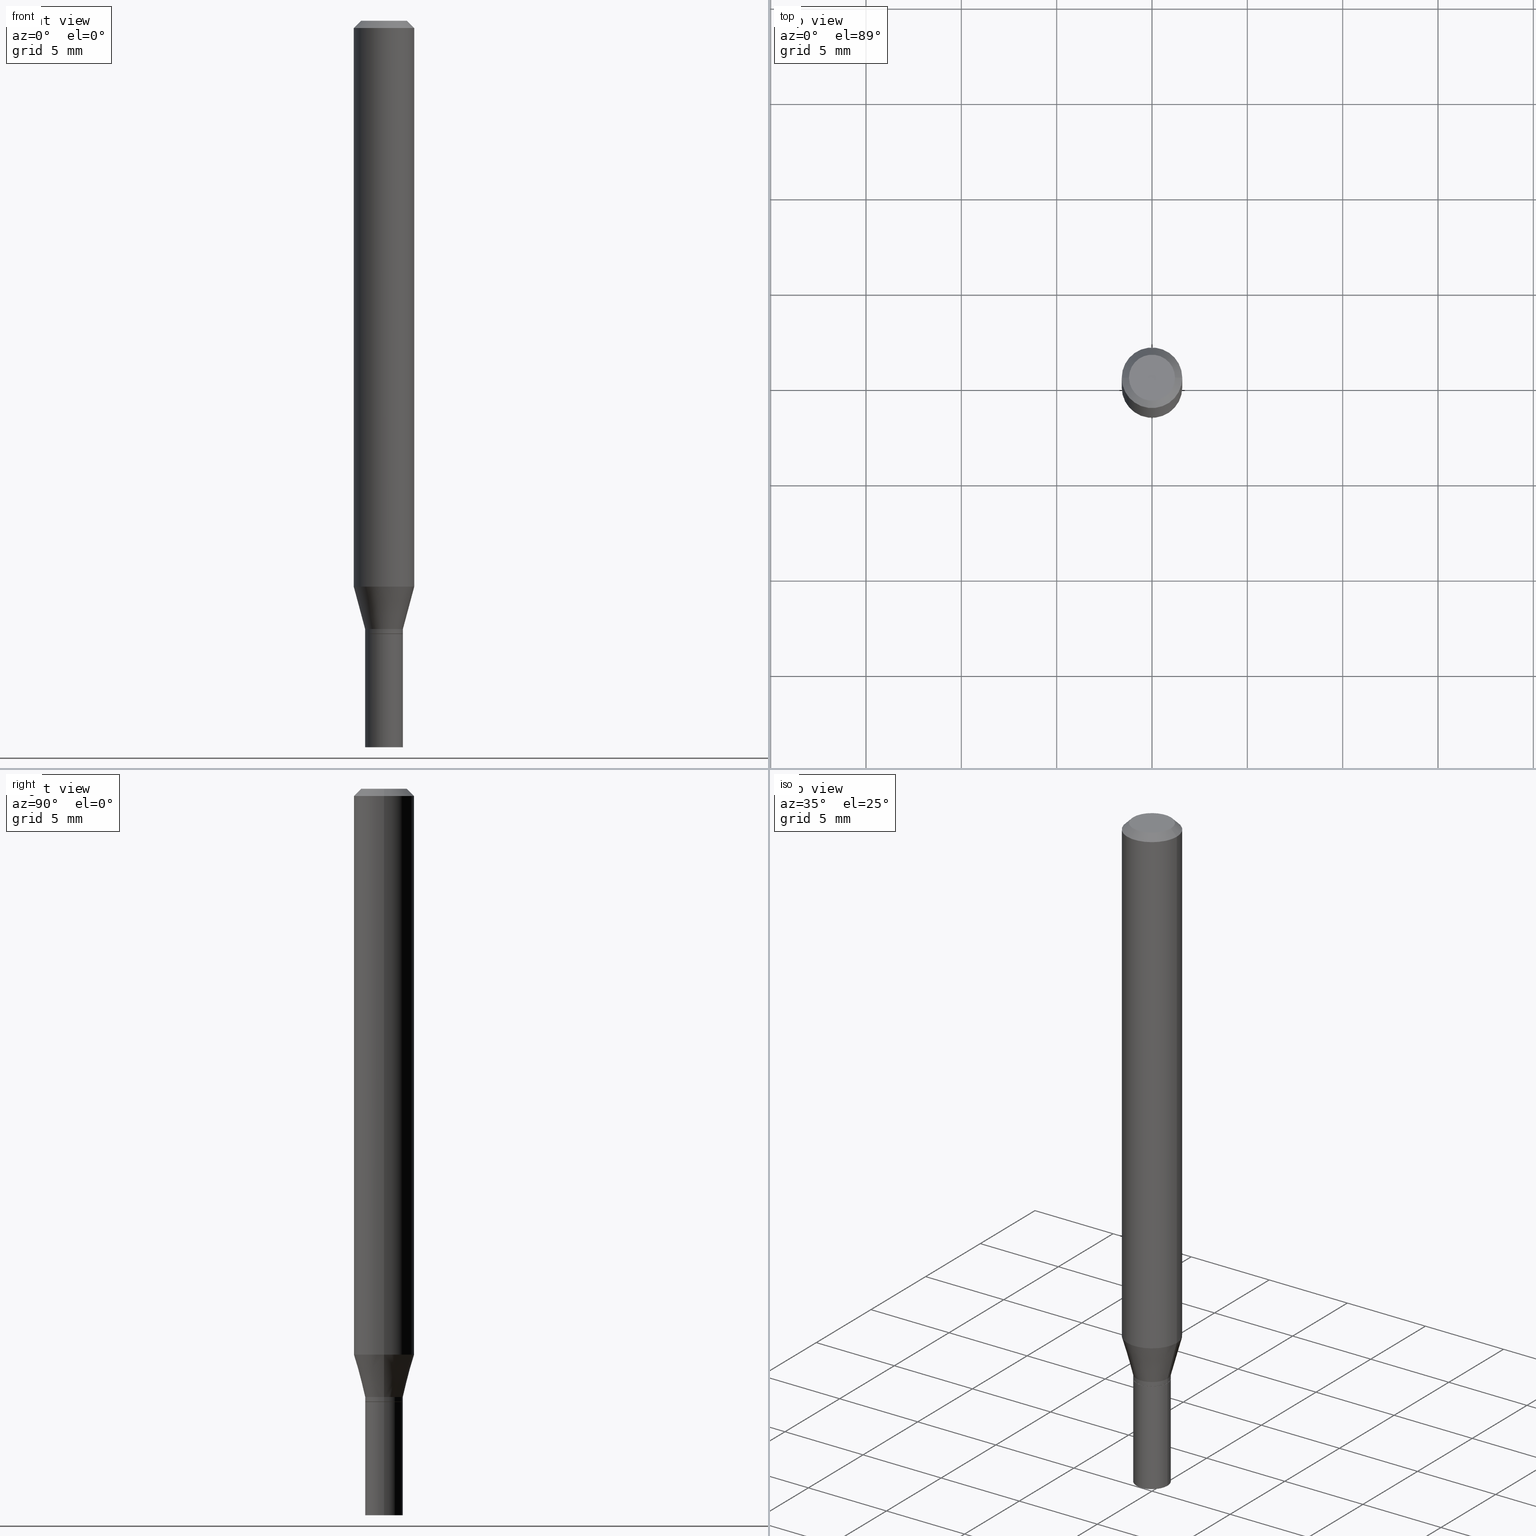
[diagram: canonical four-view strip — front | top / right | iso, engineering-drawing reading convention]
A machine part, canonical four-view strip (front | top / right | iso — engineering-drawing reading convention). The complete STEP part file that produces these views, byte-faithful:
ISO-10303-21;
HEADER;
FILE_DESCRIPTION (( 'STEP AP203' ),
    '1' );
FILE_NAME ('00870.STEP',
    '2024-03-19T22:45:08',
    ( '' ),
    ( '' ),
    'SwSTEP 2.0',
    'SolidWorks 2023',
    '' );
FILE_SCHEMA (( 'CONFIG_CONTROL_DESIGN' ));
ENDSEC;

DATA;
#1 = VERTEX_POINT ( 'NONE', #130 ) ;
#2 = DIRECTION ( 'NONE',  ( -2.445468806185136597E-29, 3.491481338843145583E-15, 1.000000000000000000 ) ) ;
#3 = PERSON ( 'UNSPECIFIED', 'UNSPECIFIED', 'UNSPECIFIED', ('UNSPECIFIED'), ('UNSPECIFIED'), ('UNSPECIFIED') ) ;
#4 = PERSON_AND_ORGANIZATION ( #3, #311 ) ;
#5 = AXIS2_PLACEMENT_3D ( 'NONE', #160, #385, #168 ) ;
#6 = CIRCLE ( 'NONE', #30, 0.04749999999999999362 ) ;
#7 = ORIENTED_EDGE ( 'NONE', *, *, #280, .F. ) ;
#8 = ORIENTED_EDGE ( 'NONE', *, *, #350, .T. ) ;
#9 = CARTESIAN_POINT ( 'NONE',  ( 0.06250000000000000000, -4.364351673553916694E-16, 3.047610484872459871E-30 ) ) ;
#10 = AXIS2_PLACEMENT_3D ( 'NONE', #83, #346, #273 ) ;
#11 = CC_DESIGN_SECURITY_CLASSIFICATION ( #338, ( #207 ) ) ;
#12 = DIRECTION ( 'NONE',  ( -2.445468806185136597E-29, 3.491481338843145583E-15, 1.000000000000000000 ) ) ;
#13 = DIRECTION ( 'NONE',  ( -2.445468806185136877E-29, 3.491481338843145188E-15, 1.000000000000000000 ) ) ;
#14 = ORIENTED_EDGE ( 'NONE', *, *, #359, .T. ) ;
#15 = FACE_OUTER_BOUND ( 'NONE', #171, .T. ) ;
#16 = DIRECTION ( 'NONE',  ( -2.445468806185136597E-29, 3.491481338843145583E-15, 1.000000000000000000 ) ) ;
#17 = CIRCLE ( 'NONE', #397, 0.06250000000000000000 ) ;
#18 = DIRECTION ( 'NONE',  ( -2.445468806185136597E-29, 3.491481338843145583E-15, 1.000000000000000000 ) ) ;
#19 = DIRECTION ( 'NONE',  ( 1.000000000000000000, -6.982962677686265922E-15, 4.876176775795935793E-29 ) ) ;
#20 = LINE ( 'NONE', #143, #42 ) ;
#21 =( NAMED_UNIT ( * ) PLANE_ANGLE_UNIT ( ) SI_UNIT ( $, .RADIAN. ) );
#22 = LINE ( 'NONE', #320, #113 ) ;
#23 = DIRECTION ( 'NONE',  ( -2.445468806185136597E-29, 3.491481338843145583E-15, 1.000000000000000000 ) ) ;
#24 = AXIS2_PLACEMENT_3D ( 'NONE', #425, #279, #423 ) ;
#25 = CC_DESIGN_APPROVAL ( #372, ( #415 ) ) ;
#26 = PLANE ( 'NONE',  #177 ) ;
#27 = DIRECTION ( 'NONE',  ( 0.2588190451025206840, 1.565188264969626504E-15, 0.9659258262890682012 ) ) ;
#28 = PERSON_AND_ORGANIZATION ( #3, #311 ) ;
#29 = ADVANCED_FACE ( 'NONE', ( #282 ), #394, .T. ) ;
#30 = AXIS2_PLACEMENT_3D ( 'NONE', #111, #37, #384 ) ;
#31 = COORDINATED_UNIVERSAL_TIME_OFFSET ( 5, 0, .BEHIND. ) ;
#32 = DATE_AND_TIME ( #183, #438 ) ;
#33 = ADVANCED_FACE ( 'NONE', ( #288 ), #417, .T. ) ;
#34 = ORIENTED_EDGE ( 'NONE', *, *, #199, .T. ) ;
#35 = CARTESIAN_POINT ( 'NONE',  ( 3.071508820568532122E-29, -4.385300561586992092E-15, -1.256000000000000227 ) ) ;
#36 = DATE_AND_TIME ( #307, #328 ) ;
#37 = DIRECTION ( 'NONE',  ( -2.445468806185136597E-29, 3.491481338843145583E-15, 1.000000000000000000 ) ) ;
#38 = VERTEX_POINT ( 'NONE', #200 ) ;
#39 = CARTESIAN_POINT ( 'NONE',  ( 3.095963508630383106E-29, -4.420215374975422163E-15, -1.266000000000000014 ) ) ;
#40 = EDGE_CURVE ( 'NONE', #38, #77, #20, .T. ) ;
#41 = FACE_OUTER_BOUND ( 'NONE', #366, .T. ) ;
#42 = VECTOR ( 'NONE', #13, 39.37007874015748143 ) ;
#43 = CIRCLE ( 'NONE', #291, 0.03849999999999999256 ) ;
#44 =( CONVERSION_BASED_UNIT ( 'INCH', #360 ) LENGTH_UNIT ( ) NAMED_UNIT ( #172 ) );
#45 = DIRECTION ( 'NONE',  ( -2.445468806185136597E-29, 3.491481338843145583E-15, 1.000000000000000000 ) ) ;
#46 = DATE_AND_TIME ( #304, #401 ) ;
#47 = ORIENTED_EDGE ( 'NONE', *, *, #280, .T. ) ;
#48 = ORIENTED_EDGE ( 'NONE', *, *, #213, .T. ) ;
#49 = CARTESIAN_POINT ( 'NONE',  ( 3.668203209277704895E-29, -5.237222008264718177E-15, -1.500000000000000222 ) ) ;
#50 = EDGE_CURVE ( 'NONE', #158, #293, #363, .T. ) ;
#51 = CARTESIAN_POINT ( 'NONE',  ( 0.000000000000000000, 0.000000000000000000, 0.000000000000000000 ) ) ;
#52 = CARTESIAN_POINT ( 'NONE',  ( 3.095963508630383106E-29, -4.420215374975422163E-15, -1.266000000000000014 ) ) ;
#53 = CONICAL_SURFACE ( 'NONE', #91, 0.03849999999999999256, 0.7853981633974739252 ) ;
#54 = DIRECTION ( 'NONE',  ( -2.445468806185136597E-29, 3.491481338843145583E-15, 1.000000000000000000 ) ) ;
#55 = FACE_OUTER_BOUND ( 'NONE', #402, .T. ) ;
#56 = LINE ( 'NONE', #87, #151 ) ;
#57 = EDGE_CURVE ( 'NONE', #162, #257, #56, .T. ) ;
#58 = FACE_OUTER_BOUND ( 'NONE', #93, .T. ) ;
#59 = CIRCLE ( 'NONE', #186, 0.03899999999999999994 ) ;
#60 = DIRECTION ( 'NONE',  ( -2.445468806185136597E-29, 3.491481338843145583E-15, 1.000000000000000000 ) ) ;
#61 = DIRECTION ( 'NONE',  ( -1.000000000000000000, 6.982962677686265922E-15, -4.876176775795935793E-29 ) ) ;
#62 = CARTESIAN_POINT ( 'NONE',  ( 3.668203209277705088E-31, -5.237222008264718399E-17, -0.01499999999999999944 ) ) ;
#63 = APPROVAL ( #435, 'UNSPECIFIED' ) ;
#64 = CARTESIAN_POINT ( 'NONE',  ( 0.03899999999999990280, -4.657636106016756115E-15, -1.256000000000000227 ) ) ;
#65 = ORIENTED_EDGE ( 'NONE', *, *, #50, .F. ) ;
#66 = AXIS2_PLACEMENT_3D ( 'NONE', #239, #289, #386 ) ;
#67 = CIRCLE ( 'NONE', #262, 0.03849999999999999256 ) ;
#68 = DIRECTION ( 'NONE',  ( 0.000000000000000000, 0.000000000000000000, 1.000000000000000000 ) ) ;
#69 = EDGE_LOOP ( 'NONE', ( #244, #433, #122, #148 ) ) ;
#70 = SECURITY_CLASSIFICATION_LEVEL ( 'unclassified' ) ;
#71 = EDGE_CURVE ( 'NONE', #293, #158, #120, .T. ) ;
#72 = CARTESIAN_POINT ( 'NONE',  ( -0.03849999999999999256, -4.146656421707783743E-15, -1.266000000000000014 ) ) ;
#73 = CIRCLE ( 'NONE', #400, 0.03899999999999999994 ) ;
#74 = ADVANCED_FACE ( 'NONE', ( #315 ), #204, .T. ) ;
#75 = ORIENTED_EDGE ( 'NONE', *, *, #253, .F. ) ;
#76 = CARTESIAN_POINT ( 'NONE',  ( -0.06250000000000000000, -1.621640148419421755E-15, -0.01499999999999999944 ) ) ;
#77 = VERTEX_POINT ( 'NONE', #241 ) ;
#78 = FACE_OUTER_BOUND ( 'NONE', #461, .T. ) ;
#79 = CIRCLE ( 'NONE', #326, 0.03899999999999992362 ) ;
#80 = CIRCLE ( 'NONE', #256, 0.03899999999999990280 ) ;
#81 = ORIENTED_EDGE ( 'NONE', *, *, #447, .T. ) ;
#82 = EDGE_CURVE ( 'NONE', #169, #1, #128, .T. ) ;
#83 = CARTESIAN_POINT ( 'NONE',  ( 0.000000000000000000, 0.000000000000000000, 0.000000000000000000 ) ) ;
#84 = COORDINATED_UNIVERSAL_TIME_OFFSET ( 5, 0, .BEHIND. ) ;
#85 = ORIENTED_EDGE ( 'NONE', *, *, #459, .F. ) ;
#86 = CARTESIAN_POINT ( 'NONE',  ( 3.668203209277705088E-31, -5.237222008264718399E-17, -0.01499999999999999944 ) ) ;
#87 = CARTESIAN_POINT ( 'NONE',  ( -0.03899999999999990974, 2.771116669464384311E-16, -1.918384685199408874E-30 ) ) ;
#88 = DATE_AND_TIME ( #383, #410 ) ;
#89 = CARTESIAN_POINT ( 'NONE',  ( 3.094740774227290865E-29, -4.418469634306001449E-15, -1.265500000000000291 ) ) ;
#90 = AXIS2_PLACEMENT_3D ( 'NONE', #238, #453, #276 ) ;
#91 = AXIS2_PLACEMENT_3D ( 'NONE', #194, #197, #123 ) ;
#92 = DESIGN_CONTEXT ( 'detailed design', #264, 'design' ) ;
#93 = EDGE_LOOP ( 'NONE', ( #193, #81 ) ) ;
#94 = DIRECTION ( 'NONE',  ( -2.445468806185136597E-29, 3.491481338843145583E-15, 1.000000000000000000 ) ) ;
#95 = LINE ( 'NONE', #64, #250 ) ;
#96 = ORIENTED_EDGE ( 'NONE', *, *, #140, .F. ) ;
#97 = ORIENTED_EDGE ( 'NONE', *, *, #82, .F. ) ;
#98 = EDGE_CURVE ( 'NONE', #162, #169, #79, .T. ) ;
#99 = CC_DESIGN_PERSON_AND_ORGANIZATION_ASSIGNMENT ( #214, #365, ( #338 ) ) ;
#100 = AXIS2_PLACEMENT_3D ( 'NONE', #229, #452, #236 ) ;
#101 = APPLICATION_PROTOCOL_DEFINITION ( 'international standard', 'config_control_design', 1994, #264 ) ;
#102 = DIRECTION ( 'NONE',  ( -2.445468806185136877E-29, 3.491481338843145188E-15, 1.000000000000000000 ) ) ;
#103 = ORIENTED_EDGE ( 'NONE', *, *, #129, .T. ) ;
#104 = DIRECTION ( 'NONE',  ( 1.000000000000000000, -6.982962677686258033E-15, 0.000000000000000000 ) ) ;
#105 = APPROVAL_ROLE ( '' ) ;
#106 = CIRCLE ( 'NONE', #290, 0.03899999999999999994 ) ;
#107 = CARTESIAN_POINT ( 'NONE',  ( -0.03899999999999990280, -4.108188894640553562E-15, -1.256000000000000227 ) ) ;
#108 = ORIENTED_EDGE ( 'NONE', *, *, #439, .F. ) ;
#109 = LINE ( 'NONE', #72, #465 ) ;
#110 = VERTEX_POINT ( 'NONE', #416 ) ;
#111 = CARTESIAN_POINT ( 'NONE',  ( -1.280979716297259006E-44, 1.828899540070383801E-30, 5.238176471756152972E-16 ) ) ;
#112 = ADVANCED_FACE ( 'NONE', ( #202 ), #224, .T. ) ;
#113 = VECTOR ( 'NONE', #317, 39.37007874015748143 ) ;
#114 = AXIS2_PLACEMENT_3D ( 'NONE', #246, #277, #274 ) ;
#115 = VERTEX_POINT ( 'NONE', #198 ) ;
#116 = DIRECTION ( 'NONE',  ( -1.000000000000000000, 6.982962677686265922E-15, -4.876176775795935793E-29 ) ) ;
#117 = CARTESIAN_POINT ( 'NONE',  ( -0.04749999999999999362, 3.578768372314219874E-16, 5.238176471756128320E-16 ) ) ;
#118 = ORIENTED_EDGE ( 'NONE', *, *, #378, .T. ) ;
#119 = DIRECTION ( 'NONE',  ( -2.445468806185136597E-29, 3.491481338843145583E-15, 1.000000000000000000 ) ) ;
#120 = CIRCLE ( 'NONE', #387, 0.06250000000000000000 ) ;
#121 = AXIS2_PLACEMENT_3D ( 'NONE', #62, #176, #138 ) ;
#122 = ORIENTED_EDGE ( 'NONE', *, *, #359, .F. ) ;
#123 = DIRECTION ( 'NONE',  ( 1.000000000000000000, -6.982962677686271444E-15, 0.000000000000000000 ) ) ;
#124 = ORIENTED_EDGE ( 'NONE', *, *, #126, .F. ) ;
#125 = DIRECTION ( 'NONE',  ( 1.000000000000000000, -6.982962677686266711E-15, 4.876176775795935793E-29 ) ) ;
#126 = EDGE_CURVE ( 'NONE', #257, #1, #261, .T. ) ;
#127 = FACE_OUTER_BOUND ( 'NONE', #444, .T. ) ;
#128 = LINE ( 'NONE', #312, #464 ) ;
#129 = EDGE_CURVE ( 'NONE', #110, #283, #185, .T. ) ;
#130 = CARTESIAN_POINT ( 'NONE',  ( 0.03899999999999990280, -4.657636106016756115E-15, -1.256000000000000227 ) ) ;
#131 = EDGE_LOOP ( 'NONE', ( #341, #141, #65, #412 ) ) ;
#132 = CARTESIAN_POINT ( 'NONE',  ( 2.723355444297953310E-16, 0.03899999999999557293, -1.266000000000000014 ) ) ;
#133 = LINE ( 'NONE', #426, #225 ) ;
#134 = DIRECTION ( 'NONE',  ( 1.000000000000000000, -6.982962677686266711E-15, 4.876176775795935793E-29 ) ) ;
#135 = LINE ( 'NONE', #466, #191 ) ;
#136 = PERSON_AND_ORGANIZATION ( #3, #311 ) ;
#137 = DIRECTION ( 'NONE',  ( -2.445468806185136597E-29, 3.491481338843145583E-15, 1.000000000000000000 ) ) ;
#138 = DIRECTION ( 'NONE',  ( 1.000000000000000000, -6.982962677686266711E-15, 0.000000000000000000 ) ) ;
#139 = COORDINATED_UNIVERSAL_TIME_OFFSET ( 5, 0, .BEHIND. ) ;
#140 = EDGE_CURVE ( 'NONE', #283, #335, #22, .T. ) ;
#141 = ORIENTED_EDGE ( 'NONE', *, *, #237, .T. ) ;
#142 = APPROVAL_STATUS ( 'not_yet_approved' ) ;
#143 = CARTESIAN_POINT ( 'NONE',  ( -0.03899999999999999994, 2.771116669464390721E-16, -1.918384685199413078E-30 ) ) ;
#144 = ADVANCED_FACE ( 'NONE', ( #389 ), #455, .T. ) ;
#145 = PERSON_AND_ORGANIZATION ( #3, #311 ) ;
#146 = CLOSED_SHELL ( 'NONE', ( #272, #297, #424, #29, #367, #149, #292, #33, #308, #434, #112, #334 ) ) ;
#147 = CONICAL_SURFACE ( 'NONE', #430, 0.06250000000000000000, 0.7853981633974309595 ) ;
#148 = ORIENTED_EDGE ( 'NONE', *, *, #267, .F. ) ;
#149 = ADVANCED_FACE ( 'NONE', ( #127 ), #443, .T. ) ;
#150 = CC_DESIGN_PERSON_AND_ORGANIZATION_ASSIGNMENT ( #136, #296, ( #205 ) ) ;
#151 = VECTOR ( 'NONE', #421, 39.37007874015748143 ) ;
#152 = DIRECTION ( 'NONE',  ( -2.445468806185136597E-29, 3.491481338843145583E-15, 1.000000000000000000 ) ) ;
#153 = ORIENTED_EDGE ( 'NONE', *, *, #388, .T. ) ;
#154 = DIRECTION ( 'NONE',  ( 2.438088387897960049E-29, -3.491481338843145188E-15, -1.000000000000000000 ) ) ;
#155 = ORIENTED_EDGE ( 'NONE', *, *, #227, .F. ) ;
#156 = CYLINDRICAL_SURFACE ( 'NONE', #301, 0.03899999999999990974 ) ;
#157 = PRODUCT_RELATED_PRODUCT_CATEGORY ( 'detail', '', ( #205 ) ) ;
#158 = VERTEX_POINT ( 'NONE', #206 ) ;
#159 = CYLINDRICAL_SURFACE ( 'NONE', #418, 0.06250000000000000000 ) ;
#160 = CARTESIAN_POINT ( 'NONE',  ( 0.000000000000000000, 0.000000000000000000, 0.000000000000000000 ) ) ;
#161 = CIRCLE ( 'NONE', #318, 0.03899999999999999994 ) ;
#162 = VERTEX_POINT ( 'NONE', #393 ) ;
#163 = LINE ( 'NONE', #314, #332 ) ;
#164 = CARTESIAN_POINT ( 'NONE',  ( -1.280979716297259006E-44, 1.828899540070383801E-30, 5.238176471756152972E-16 ) ) ;
#165 = ADVANCED_FACE ( 'NONE', ( #58 ), #26, .F. ) ;
#166 = CARTESIAN_POINT ( 'NONE',  ( -0.03849999999999999256, -4.144007194533673331E-15, -1.266000000000000014 ) ) ;
#167 = DIRECTION ( 'NONE',  ( 1.000000000000000000, -6.982962677686272233E-15, 0.000000000000000000 ) ) ;
#168 = DIRECTION ( 'NONE',  ( 1.000000000000000000, -6.982962677686265922E-15, 4.876176775795935793E-29 ) ) ;
#169 = VERTEX_POINT ( 'NONE', #380 ) ;
#170 = VECTOR ( 'NONE', #364, 39.37007874015748854 ) ;
#171 = EDGE_LOOP ( 'NONE', ( #47, #218, #353, #195 ) ) ;
#172 = DIMENSIONAL_EXPONENTS ( 1.000000000000000000, 0.000000000000000000, 0.000000000000000000, 0.000000000000000000, 0.000000000000000000, 0.000000000000000000, 0.000000000000000000 ) ;
#173 = DIRECTION ( 'NONE',  ( -2.445468806185136597E-29, 3.491481338843145583E-15, 1.000000000000000000 ) ) ;
#174 = EDGE_CURVE ( 'NONE', #1, #158, #95, .T. ) ;
#175 = APPROVAL_STATUS ( 'not_yet_approved' ) ;
#176 = DIRECTION ( 'NONE',  ( -2.445468806185136597E-29, 3.491481338843145583E-15, 1.000000000000000000 ) ) ;
#177 = AXIS2_PLACEMENT_3D ( 'NONE', #132, #286, #61 ) ;
#178 = PERSON_AND_ORGANIZATION ( #3, #311 ) ;
#179 = COORDINATED_UNIVERSAL_TIME_OFFSET ( 5, 0, .BEHIND. ) ;
#180 = APPROVAL_DATE_TIME ( #46, #181 ) ;
#181 = APPROVAL ( #142, 'UNSPECIFIED' ) ;
#182 = ORIENTED_EDGE ( 'NONE', *, *, #233, .F. ) ;
#183 = CALENDAR_DATE ( 2024, 19, 3 ) ;
#184 = ORIENTED_EDGE ( 'NONE', *, *, #354, .T. ) ;
#185 = CIRCLE ( 'NONE', #449, 0.04749999999999999362 ) ;
#186 = AXIS2_PLACEMENT_3D ( 'NONE', #49, #196, #190 ) ;
#187 = EDGE_CURVE ( 'NONE', #209, #220, #133, .T. ) ;
#188 = DIRECTION ( 'NONE',  ( 1.000000000000000000, -6.982962677686271444E-15, 0.000000000000000000 ) ) ;
#189 = EDGE_LOOP ( 'NONE', ( #392, #245, #348, #124 ) ) ;
#190 = DIRECTION ( 'NONE',  ( 1.000000000000000000, -6.982962677686258033E-15, 0.000000000000000000 ) ) ;
#191 = VECTOR ( 'NONE', #102, 39.37007874015748143 ) ;
#192 = APPROVAL_PERSON_ORGANIZATION ( #4, #63, #105 ) ;
#193 = ORIENTED_EDGE ( 'NONE', *, *, #439, .T. ) ;
#194 = CARTESIAN_POINT ( 'NONE',  ( 3.095963508630383106E-29, -4.420215374975422163E-15, -1.266000000000000014 ) ) ;
#195 = ORIENTED_EDGE ( 'NONE', *, *, #388, .F. ) ;
#196 = DIRECTION ( 'NONE',  ( -2.445468806185136597E-29, 3.491481338843145583E-15, 1.000000000000000000 ) ) ;
#197 = DIRECTION ( 'NONE',  ( -2.445468806185136597E-29, 3.491481338843145583E-15, 1.000000000000000000 ) ) ;
#198 = CARTESIAN_POINT ( 'NONE',  ( 0.06250000000000000000, -4.888073874380388472E-16, -0.01499999999999999944 ) ) ;
#199 = EDGE_CURVE ( 'NONE', #110, #115, #429, .T. ) ;
#200 = CARTESIAN_POINT ( 'NONE',  ( -0.03899999999999999994, -4.551607024673631246E-15, -1.500000000000000222 ) ) ;
#201 = CARTESIAN_POINT ( 'NONE',  ( 3.095963508630383106E-29, -4.420215374975422163E-15, -1.266000000000000014 ) ) ;
#202 = FACE_OUTER_BOUND ( 'NONE', #259, .T. ) ;
#203 = CARTESIAN_POINT ( 'NONE',  ( 3.095963508630383106E-29, -4.420215374975422163E-15, -1.266000000000000014 ) ) ;
#204 = CYLINDRICAL_SURFACE ( 'NONE', #5, 0.03899999999999999994 ) ;
#205 = PRODUCT ( '00870', '00870', '', ( #211 ) ) ;
#206 = CARTESIAN_POINT ( 'NONE',  ( 0.06250000000000000000, -4.515521663811713727E-15, -1.168296806022131262 ) ) ;
#207 = PRODUCT_DEFINITION_FORMATION_WITH_SPECIFIED_SOURCE ( 'ANY', '', #205, .NOT_KNOWN. ) ;
#208 = CARTESIAN_POINT ( 'NONE',  ( 3.095963508630383106E-29, -4.420215374975422163E-15, -1.266000000000000014 ) ) ;
#209 = VERTEX_POINT ( 'NONE', #398 ) ;
#210 = DIRECTION ( 'NONE',  ( -2.445468806185136877E-29, 3.491481338843145188E-15, 1.000000000000000000 ) ) ;
#211 = MECHANICAL_CONTEXT ( 'NONE', #316, 'mechanical' ) ;
#212 = MANIFOLD_SOLID_BREP ( 'Body-Move/Copy2[1]', #255 ) ;
#213 = EDGE_CURVE ( 'NONE', #335, #115, #298, .T. ) ;
#214 = PERSON_AND_ORGANIZATION ( #3, #311 ) ;
#215 = AXIS2_PLACEMENT_3D ( 'NONE', #406, #414, #446 ) ;
#216 = LINE ( 'NONE', #107, #170 ) ;
#217 = CALENDAR_DATE ( 2024, 19, 3 ) ;
#218 = ORIENTED_EDGE ( 'NONE', *, *, #248, .T. ) ;
#219 = PERSON_AND_ORGANIZATION_ROLE ( 'design_supplier' ) ;
#220 = VERTEX_POINT ( 'NONE', #431 ) ;
#221 = CC_DESIGN_PERSON_AND_ORGANIZATION_ASSIGNMENT ( #300, #352, ( #415 ) ) ;
#222 = ORIENTED_EDGE ( 'NONE', *, *, #447, .F. ) ;
#223 = ORIENTED_EDGE ( 'NONE', *, *, #57, .T. ) ;
#224 = CONICAL_SURFACE ( 'NONE', #427, 0.03849999999999999256, 0.7853981633974739252 ) ;
#225 = VECTOR ( 'NONE', #210, 39.37007874015748143 ) ;
#226 = LOCAL_TIME ( 18, 45, 8.000000000000000000, #254 ) ;
#227 = EDGE_CURVE ( 'NONE', #209, #38, #161, .T. ) ;
#228 = ORIENTED_EDGE ( 'NONE', *, *, #71, .F. ) ;
#229 = CARTESIAN_POINT ( 'NONE',  ( 3.071508820568532122E-29, -4.385300561586992092E-15, -1.256000000000000227 ) ) ;
#230 = EDGE_LOOP ( 'NONE', ( #263, #460, #108, #450 ) ) ;
#231 = CARTESIAN_POINT ( 'NONE',  ( -0.06250000000000000000, -3.634997286606259442E-15, -1.168296806022131262 ) ) ;
#232 = AXIS2_PLACEMENT_3D ( 'NONE', #463, #68, #287 ) ;
#233 = EDGE_CURVE ( 'NONE', #1, #257, #80, .T. ) ;
#234 = DIRECTION ( 'NONE',  ( 1.000000000000000000, -6.982962677686266711E-15, 0.000000000000000000 ) ) ;
#235 =( NAMED_UNIT ( * ) SI_UNIT ( $, .STERADIAN. ) SOLID_ANGLE_UNIT ( ) );
#236 = DIRECTION ( 'NONE',  ( 1.000000000000000000, -6.982962677686275388E-15, 0.000000000000000000 ) ) ;
#237 = EDGE_CURVE ( 'NONE', #257, #293, #216, .T. ) ;
#238 = CARTESIAN_POINT ( 'NONE',  ( 2.857033395492849215E-29, -4.079086496456321269E-15, -1.168296806022131262 ) ) ;
#239 = CARTESIAN_POINT ( 'NONE',  ( 3.668203209277705088E-31, -5.237222008264718399E-17, -0.01499999999999999944 ) ) ;
#240 = AXIS2_PLACEMENT_3D ( 'NONE', #396, #23, #19 ) ;
#241 = CARTESIAN_POINT ( 'NONE',  ( -0.03899999999999999994, -4.551607024673631246E-15, -1.266000000000000014 ) ) ;
#242 = VECTOR ( 'NONE', #325, 39.37007874015748143 ) ;
#243 = DIRECTION ( 'NONE',  ( 1.000000000000000000, -6.982962677686262766E-15, 0.000000000000000000 ) ) ;
#244 = ORIENTED_EDGE ( 'NONE', *, *, #50, .T. ) ;
#245 = ORIENTED_EDGE ( 'NONE', *, *, #98, .T. ) ;
#246 = CARTESIAN_POINT ( 'NONE',  ( 3.071508820568532122E-29, -4.385300561586992092E-15, -1.256000000000000227 ) ) ;
#247 = APPROVAL_DATE_TIME ( #36, #372 ) ;
#248 = EDGE_CURVE ( 'NONE', #448, #162, #109, .T. ) ;
#249 = DIRECTION ( 'NONE',  ( 1.000000000000000000, -6.982962677686267499E-15, 4.852736867747366768E-29 ) ) ;
#250 = VECTOR ( 'NONE', #27, 39.37007874015748854 ) ;
#251 = UNCERTAINTY_MEASURE_WITH_UNIT (LENGTH_MEASURE( 1.000000000000000082E-05 ), #44, 'distance_accuracy_value', 'NONE');
#252 = CARTESIAN_POINT ( 'NONE',  ( 3.668203209277704895E-29, -5.237222008264718177E-15, -1.500000000000000222 ) ) ;
#253 = EDGE_CURVE ( 'NONE', #283, #110, #6, .T. ) ;
#254 = COORDINATED_UNIVERSAL_TIME_OFFSET ( 5, 0, .BEHIND. ) ;
#255 = CLOSED_SHELL ( 'NONE', ( #74, #324, #144, #165 ) ) ;
#256 = AXIS2_PLACEMENT_3D ( 'NONE', #35, #2, #442 ) ;
#257 = VERTEX_POINT ( 'NONE', #409 ) ;
#258 = CC_DESIGN_PERSON_AND_ORGANIZATION_ASSIGNMENT ( #295, #219, ( #207 ) ) ;
#259 = EDGE_LOOP ( 'NONE', ( #432, #118, #153, #404 ) ) ;
#260 = SHAPE_DEFINITION_REPRESENTATION ( #281, #390 ) ;
#261 = CIRCLE ( 'NONE', #24, 0.03899999999999990280 ) ;
#262 = AXIS2_PLACEMENT_3D ( 'NONE', #375, #119, #454 ) ;
#263 = ORIENTED_EDGE ( 'NONE', *, *, #227, .T. ) ;
#264 = APPLICATION_CONTEXT ( 'configuration controlled 3d designs of mechanical parts and assemblies' ) ;
#265 = ORIENTED_EDGE ( 'NONE', *, *, #129, .F. ) ;
#266 = CYLINDRICAL_SURFACE ( 'NONE', #10, 0.03899999999999990974 ) ;
#267 = EDGE_CURVE ( 'NONE', #158, #115, #275, .T. ) ;
#268 = DIRECTION ( 'NONE',  ( 1.000000000000000000, -6.982962677686272233E-15, 0.000000000000000000 ) ) ;
#269 = PLANE ( 'NONE',  #215 ) ;
#270 = VECTOR ( 'NONE', #344, 39.37007874015748143 ) ;
#271 = CC_DESIGN_APPROVAL ( #63, ( #207 ) ) ;
#272 = ADVANCED_FACE ( 'NONE', ( #379 ), #156, .T. ) ;
#273 = DIRECTION ( 'NONE',  ( 1.000000000000000000, -6.982962677686266711E-15, 4.876176775795936353E-29 ) ) ;
#274 = DIRECTION ( 'NONE',  ( 1.000000000000000000, -6.982962677686275388E-15, 0.000000000000000000 ) ) ;
#275 = LINE ( 'NONE', #9, #270 ) ;
#276 = DIRECTION ( 'NONE',  ( 1.000000000000000000, -6.982962677686262766E-15, 0.000000000000000000 ) ) ;
#277 = DIRECTION ( 'NONE',  ( -2.445468806185136597E-29, 3.491481338843145583E-15, 1.000000000000000000 ) ) ;
#278 = CONICAL_SURFACE ( 'NONE', #100, 0.03899999999999990280, 0.2617993877991494078 ) ;
#279 = DIRECTION ( 'NONE',  ( -2.445468806185136597E-29, 3.491481338843145583E-15, 1.000000000000000000 ) ) ;
#280 = EDGE_CURVE ( 'NONE', #407, #448, #67, .T. ) ;
#281 = PRODUCT_DEFINITION_SHAPE ( 'NONE', 'NONE',  #415 ) ;
#282 = FACE_OUTER_BOUND ( 'NONE', #69, .T. ) ;
#283 = VERTEX_POINT ( 'NONE', #117 ) ;
#284 =( LENGTH_UNIT ( ) NAMED_UNIT ( * ) SI_UNIT ( $, .METRE. ) );
#285 = DIRECTION ( 'NONE',  ( 1.000000000000000000, -6.982962677686265922E-15, 4.876176775795935793E-29 ) ) ;
#286 = DIRECTION ( 'NONE',  ( 2.438088387897960049E-29, -3.491481338843145188E-15, -1.000000000000000000 ) ) ;
#287 = DIRECTION ( 'NONE',  ( 1.000000000000000000, 0.000000000000000000, 0.000000000000000000 ) ) ;
#288 = FACE_OUTER_BOUND ( 'NONE', #305, .T. ) ;
#289 = DIRECTION ( 'NONE',  ( 2.445468806185136597E-29, -3.491481338843145583E-15, -1.000000000000000000 ) ) ;
#290 = AXIS2_PLACEMENT_3D ( 'NONE', #201, #60, #361 ) ;
#291 = AXIS2_PLACEMENT_3D ( 'NONE', #39, #18, #188 ) ;
#292 = ADVANCED_FACE ( 'NONE', ( #78 ), #159, .T. ) ;
#293 = VERTEX_POINT ( 'NONE', #231 ) ;
#294 = APPROVAL_ROLE ( '' ) ;
#295 = PERSON_AND_ORGANIZATION ( #3, #311 ) ;
#296 = PERSON_AND_ORGANIZATION_ROLE ( 'design_owner' ) ;
#297 = ADVANCED_FACE ( 'NONE', ( #15 ), #53, .T. ) ;
#298 = CIRCLE ( 'NONE', #121, 0.06250000000000000000 ) ;
#299 = DIRECTION ( 'NONE',  ( -0.7071067811865656694, 7.493145998870420424E-15, 0.7071067811865294761 ) ) ;
#300 = PERSON_AND_ORGANIZATION ( #3, #311 ) ;
#301 = AXIS2_PLACEMENT_3D ( 'NONE', #51, #16, #413 ) ;
#302 = CC_DESIGN_DATE_AND_TIME_ASSIGNMENT ( #32, #436, ( #338 ) ) ;
#303 = CARTESIAN_POINT ( 'NONE',  ( 0.03849999999999999256, -4.689059438066343968E-15, -1.266000000000000014 ) ) ;
#304 = CALENDAR_DATE ( 2024, 19, 3 ) ;
#305 = EDGE_LOOP ( 'NONE', ( #440, #75, #313, #48 ) ) ;
#306 = CARTESIAN_POINT ( 'NONE',  ( 0.000000000000000000, 0.000000000000000000, 0.000000000000000000 ) ) ;
#307 = CALENDAR_DATE ( 2024, 19, 3 ) ;
#308 = ADVANCED_FACE ( 'NONE', ( #41 ), #342, .F. ) ;
#309 = ORIENTED_EDGE ( 'NONE', *, *, #71, .T. ) ;
#310 = FACE_OUTER_BOUND ( 'NONE', #131, .T. ) ;
#311 = ORGANIZATION ( 'UNSPECIFIED', 'UNSPECIFIED', '' ) ;
#312 = CARTESIAN_POINT ( 'NONE',  ( 0.03899999999999990974, -2.723355444297637765E-16, 1.901708942560410727E-30 ) ) ;
#313 = ORIENTED_EDGE ( 'NONE', *, *, #140, .T. ) ;
#314 = CARTESIAN_POINT ( 'NONE',  ( 0.03849999999999999256, -4.689059438066343968E-15, -1.266000000000000014 ) ) ;
#315 = FACE_OUTER_BOUND ( 'NONE', #230, .T. ) ;
#316 = APPLICATION_CONTEXT ( 'configuration controlled 3d designs of mechanical parts and assemblies' ) ;
#317 = DIRECTION ( 'NONE',  ( -0.7071067811865352493, 2.468850131082128476E-15, -0.7071067811865597852 ) ) ;
#318 = AXIS2_PLACEMENT_3D ( 'NONE', #252, #441, #104 ) ;
#319 = CC_DESIGN_APPROVAL ( #181, ( #338 ) ) ;
#320 = CARTESIAN_POINT ( 'NONE',  ( -0.06250000000000000000, 3.840629472727444916E-16, -0.01499999999999999944 ) ) ;
#321 = DIRECTION ( 'NONE',  ( -2.445468806185136597E-29, 3.491481338843145583E-15, 1.000000000000000000 ) ) ;
#322 = APPROVAL_ROLE ( '' ) ;
#323 = CARTESIAN_POINT ( 'NONE',  ( 0.000000000000000000, 0.000000000000000000, 0.000000000000000000 ) ) ;
#324 = ADVANCED_FACE ( 'NONE', ( #373 ), #269, .F. ) ;
#325 = DIRECTION ( 'NONE',  ( 0.7071067811865352493, -7.319954787623213447E-15, -0.7071067811865597852 ) ) ;
#326 = AXIS2_PLACEMENT_3D ( 'NONE', #347, #54, #167 ) ;
#327 = APPLICATION_PROTOCOL_DEFINITION ( 'international standard', 'config_control_design', 1994, #316 ) ;
#328 = LOCAL_TIME ( 18, 45, 8.000000000000000000, #179 ) ;
#329 = APPROVAL_DATE_TIME ( #399, #63 ) ;
#330 = PERSON_AND_ORGANIZATION_ROLE ( 'creator' ) ;
#331 = EDGE_LOOP ( 'NONE', ( #391, #184, #422, #222 ) ) ;
#332 = VECTOR ( 'NONE', #336, 39.37007874015748143 ) ;
#333 = EDGE_LOOP ( 'NONE', ( #265, #34, #14, #96 ) ) ;
#334 = ADVANCED_FACE ( 'NONE', ( #411 ), #266, .T. ) ;
#335 = VERTEX_POINT ( 'NONE', #76 ) ;
#336 = DIRECTION ( 'NONE',  ( 0.7071067811865656694, -2.468850131082446387E-15, 0.7071067811865294761 ) ) ;
#337 = EDGE_LOOP ( 'NONE', ( #8, #223, #182, #97 ) ) ;
#338 = SECURITY_CLASSIFICATION ( '', '', #70 ) ;
#339 = ORIENTED_EDGE ( 'NONE', *, *, #237, .F. ) ;
#340 = CARTESIAN_POINT ( 'NONE',  ( 3.668203209277705088E-31, -5.237222008264718399E-17, -0.01499999999999999944 ) ) ;
#341 = ORIENTED_EDGE ( 'NONE', *, *, #233, .T. ) ;
#342 = PLANE ( 'NONE',  #437 ) ;
#343 = CC_DESIGN_PERSON_AND_ORGANIZATION_ASSIGNMENT ( #145, #330, ( #207 ) ) ;
#344 = DIRECTION ( 'NONE',  ( -2.445468806185136877E-29, 3.491481338843145188E-15, 1.000000000000000000 ) ) ;
#345 =( GEOMETRIC_REPRESENTATION_CONTEXT ( 3 ) GLOBAL_UNCERTAINTY_ASSIGNED_CONTEXT ( ( #251 ) ) GLOBAL_UNIT_ASSIGNED_CONTEXT ( ( #44, #21, #235 ) ) REPRESENTATION_CONTEXT ( 'NONE', 'WORKASPACE' ) );
#346 = DIRECTION ( 'NONE',  ( -2.445468806185136597E-29, 3.491481338843145583E-15, 1.000000000000000000 ) ) ;
#347 = CARTESIAN_POINT ( 'NONE',  ( 3.094740774227290865E-29, -4.418469634306001449E-15, -1.265500000000000291 ) ) ;
#348 = ORIENTED_EDGE ( 'NONE', *, *, #82, .T. ) ;
#349 = DIRECTION ( 'NONE',  ( 1.000000000000000000, -6.982962677686271444E-15, 0.000000000000000000 ) ) ;
#350 = EDGE_CURVE ( 'NONE', #169, #162, #369, .T. ) ;
#351 = DIRECTION ( 'NONE',  ( -2.445468806185136877E-29, 3.491481338843145188E-15, 1.000000000000000000 ) ) ;
#352 = PERSON_AND_ORGANIZATION_ROLE ( 'creator' ) ;
#353 = ORIENTED_EDGE ( 'NONE', *, *, #350, .F. ) ;
#354 = EDGE_CURVE ( 'NONE', #38, #209, #59, .T. ) ;
#355 = CARTESIAN_POINT ( 'NONE',  ( 2.857033395492849215E-29, -4.079086496456321269E-15, -1.168296806022131262 ) ) ;
#356 = AXIS2_PLACEMENT_3D ( 'NONE', #89, #152, #268 ) ;
#357 = DIRECTION ( 'NONE',  ( 1.000000000000000000, -6.982962677686258033E-15, 0.000000000000000000 ) ) ;
#358 = CARTESIAN_POINT ( 'NONE',  ( 0.06250000000000000000, -4.811533449433679005E-16, -0.01499999999999999944 ) ) ;
#359 = EDGE_CURVE ( 'NONE', #115, #335, #17, .T. ) ;
#360 = LENGTH_MEASURE_WITH_UNIT ( LENGTH_MEASURE( 0.02539999999999999897 ), #284 );
#361 = DIRECTION ( 'NONE',  ( 1.000000000000000000, -6.982962677686258033E-15, 0.000000000000000000 ) ) ;
#362 = ORIENTED_EDGE ( 'NONE', *, *, #174, .T. ) ;
#363 = CIRCLE ( 'NONE', #90, 0.06250000000000000000 ) ;
#364 = DIRECTION ( 'NONE',  ( -0.2588190451025206840, 5.211531920934545520E-15, 0.9659258262890682012 ) ) ;
#365 = PERSON_AND_ORGANIZATION_ROLE ( 'classification_officer' ) ;
#366 = EDGE_LOOP ( 'NONE', ( #371, #103 ) ) ;
#367 = ADVANCED_FACE ( 'NONE', ( #310 ), #278, .T. ) ;
#368 = ORIENTED_EDGE ( 'NONE', *, *, #354, .F. ) ;
#369 = CIRCLE ( 'NONE', #356, 0.03899999999999992362 ) ;
#370 = APPROVAL_PERSON_ORGANIZATION ( #178, #181, #294 ) ;
#371 = ORIENTED_EDGE ( 'NONE', *, *, #253, .T. ) ;
#372 = APPROVAL ( #175, 'UNSPECIFIED' ) ;
#373 = FACE_OUTER_BOUND ( 'NONE', #408, .T. ) ;
#374 = ORIENTED_EDGE ( 'NONE', *, *, #378, .F. ) ;
#375 = CARTESIAN_POINT ( 'NONE',  ( 3.095963508630383106E-29, -4.420215374975422163E-15, -1.266000000000000014 ) ) ;
#376 = AXIS2_PLACEMENT_3D ( 'NONE', #323, #321, #134 ) ;
#377 = MANIFOLD_SOLID_BREP ( 'Body-Move/Copy2[2]', #146 ) ;
#378 = EDGE_CURVE ( 'NONE', #448, #407, #43, .T. ) ;
#379 = FACE_OUTER_BOUND ( 'NONE', #337, .T. ) ;
#380 = CARTESIAN_POINT ( 'NONE',  ( 0.03899999999999992362, -4.690805178735765472E-15, -1.265500000000000291 ) ) ;
#381 = CC_DESIGN_DATE_AND_TIME_ASSIGNMENT ( #88, #403, ( #415 ) ) ;
#382 = CARTESIAN_POINT ( 'NONE',  ( 3.316907271900976096E-16, 0.04749999999999999362, 9.606345999275825217E-17 ) ) ;
#383 = CALENDAR_DATE ( 2024, 19, 3 ) ;
#384 = DIRECTION ( 'NONE',  ( 1.000000000000000000, -6.982962677686267499E-15, 4.852736867747366768E-29 ) ) ;
#385 = DIRECTION ( 'NONE',  ( -2.445468806185136597E-29, 3.491481338843145583E-15, 1.000000000000000000 ) ) ;
#386 = DIRECTION ( 'NONE',  ( -1.000000000000000000, 6.982962677686266711E-15, 0.000000000000000000 ) ) ;
#387 = AXIS2_PLACEMENT_3D ( 'NONE', #355, #94, #243 ) ;
#388 = EDGE_CURVE ( 'NONE', #407, #169, #163, .T. ) ;
#389 = FACE_OUTER_BOUND ( 'NONE', #331, .T. ) ;
#390 = ADVANCED_BREP_SHAPE_REPRESENTATION ( '00870', ( #212, #377, #232 ), #345 ) ;
#391 = ORIENTED_EDGE ( 'NONE', *, *, #40, .F. ) ;
#392 = ORIENTED_EDGE ( 'NONE', *, *, #57, .F. ) ;
#393 = CARTESIAN_POINT ( 'NONE',  ( -0.03899999999999992362, -4.141357967359562919E-15, -1.265500000000000291 ) ) ;
#394 = CYLINDRICAL_SURFACE ( 'NONE', #376, 0.06250000000000000000 ) ;
#395 = DIRECTION ( 'NONE',  ( -2.438088387897960049E-29, 3.491481338843145188E-15, 1.000000000000000000 ) ) ;
#396 = CARTESIAN_POINT ( 'NONE',  ( 0.000000000000000000, 0.000000000000000000, 0.000000000000000000 ) ) ;
#397 = AXIS2_PLACEMENT_3D ( 'NONE', #86, #12, #234 ) ;
#398 = CARTESIAN_POINT ( 'NONE',  ( 0.03899999999999999994, -5.509557552694482989E-15, -1.500000000000000222 ) ) ;
#399 = DATE_AND_TIME ( #217, #226 ) ;
#400 = AXIS2_PLACEMENT_3D ( 'NONE', #208, #137, #357 ) ;
#401 = LOCAL_TIME ( 18, 45, 8.000000000000000000, #139 ) ;
#402 = EDGE_LOOP ( 'NONE', ( #7, #374 ) ) ;
#403 = DATE_TIME_ROLE ( 'creation_date' ) ;
#404 = ORIENTED_EDGE ( 'NONE', *, *, #98, .F. ) ;
#405 = ORIENTED_EDGE ( 'NONE', *, *, #126, .T. ) ;
#406 = CARTESIAN_POINT ( 'NONE',  ( 3.584916967085606921E-29, -5.356492647442320375E-15, -1.500000000000000222 ) ) ;
#407 = VERTEX_POINT ( 'NONE', #303 ) ;
#408 = EDGE_LOOP ( 'NONE', ( #155, #368 ) ) ;
#409 = CARTESIAN_POINT ( 'NONE',  ( -0.03899999999999990280, -3.871593090623406502E-15, -1.256000000000000227 ) ) ;
#410 = LOCAL_TIME ( 18, 45, 8.000000000000000000, #84 ) ;
#411 = FACE_OUTER_BOUND ( 'NONE', #189, .T. ) ;
#412 = ORIENTED_EDGE ( 'NONE', *, *, #174, .F. ) ;
#413 = DIRECTION ( 'NONE',  ( 1.000000000000000000, -6.982962677686266711E-15, 4.876176775795936353E-29 ) ) ;
#414 = DIRECTION ( 'NONE',  ( -2.438088387897960049E-29, 3.491481338843145188E-15, 1.000000000000000000 ) ) ;
#415 = PRODUCT_DEFINITION ( 'UNKNOWN', '', #207, #92 ) ;
#416 = CARTESIAN_POINT ( 'NONE',  ( 0.04749999999999999362, -4.035134999187569255E-16, 5.238176471756178610E-16 ) ) ;
#417 = CONICAL_SURFACE ( 'NONE', #66, 0.06250000000000000000, 0.7853981633974309595 ) ;
#418 = AXIS2_PLACEMENT_3D ( 'NONE', #306, #45, #125 ) ;
#419 = ORIENTED_EDGE ( 'NONE', *, *, #267, .T. ) ;
#420 = PLANE ( 'NONE',  #451 ) ;
#421 = DIRECTION ( 'NONE',  ( -2.445468806185136877E-29, 3.491481338843145188E-15, 1.000000000000000000 ) ) ;
#422 = ORIENTED_EDGE ( 'NONE', *, *, #187, .T. ) ;
#423 = DIRECTION ( 'NONE',  ( 1.000000000000000000, -6.982962677686275388E-15, 0.000000000000000000 ) ) ;
#424 = ADVANCED_FACE ( 'NONE', ( #445 ), #147, .T. ) ;
#425 = CARTESIAN_POINT ( 'NONE',  ( 3.071508820568532122E-29, -4.385300561586992092E-15, -1.256000000000000227 ) ) ;
#426 = CARTESIAN_POINT ( 'NONE',  ( 0.03899999999999999994, -2.723355444297643682E-16, 1.901708942560414931E-30 ) ) ;
#427 = AXIS2_PLACEMENT_3D ( 'NONE', #52, #458, #349 ) ;
#428 = DIRECTION ( 'NONE',  ( 2.445468806185136597E-29, -3.491481338843145583E-15, -1.000000000000000000 ) ) ;
#429 = LINE ( 'NONE', #358, #242 ) ;
#430 = AXIS2_PLACEMENT_3D ( 'NONE', #340, #428, #457 ) ;
#431 = CARTESIAN_POINT ( 'NONE',  ( 0.03899999999999999994, -4.692550919405186186E-15, -1.266000000000000014 ) ) ;
#432 = ORIENTED_EDGE ( 'NONE', *, *, #248, .F. ) ;
#433 = ORIENTED_EDGE ( 'NONE', *, *, #459, .T. ) ;
#434 = ADVANCED_FACE ( 'NONE', ( #55 ), #420, .F. ) ;
#435 = APPROVAL_STATUS ( 'not_yet_approved' ) ;
#436 = DATE_TIME_ROLE ( 'classification_date' ) ;
#437 = AXIS2_PLACEMENT_3D ( 'NONE', #382, #154, #116 ) ;
#438 = LOCAL_TIME ( 18, 45, 8.000000000000000000, #31 ) ;
#439 = EDGE_CURVE ( 'NONE', #220, #77, #106, .T. ) ;
#440 = ORIENTED_EDGE ( 'NONE', *, *, #199, .F. ) ;
#441 = DIRECTION ( 'NONE',  ( -2.445468806185136597E-29, 3.491481338843145583E-15, 1.000000000000000000 ) ) ;
#442 = DIRECTION ( 'NONE',  ( 1.000000000000000000, -6.982962677686275388E-15, 0.000000000000000000 ) ) ;
#443 = CONICAL_SURFACE ( 'NONE', #114, 0.03899999999999990280, 0.2617993877991494078 ) ;
#444 = EDGE_LOOP ( 'NONE', ( #339, #405, #362, #228 ) ) ;
#445 = FACE_OUTER_BOUND ( 'NONE', #333, .T. ) ;
#446 = DIRECTION ( 'NONE',  ( 1.000000000000000000, -6.982962677686265922E-15, 4.876176775795935793E-29 ) ) ;
#447 = EDGE_CURVE ( 'NONE', #77, #220, #73, .T. ) ;
#448 = VERTEX_POINT ( 'NONE', #166 ) ;
#449 = AXIS2_PLACEMENT_3D ( 'NONE', #164, #173, #249 ) ;
#450 = ORIENTED_EDGE ( 'NONE', *, *, #187, .F. ) ;
#451 = AXIS2_PLACEMENT_3D ( 'NONE', #203, #395, #285 ) ;
#452 = DIRECTION ( 'NONE',  ( -2.445468806185136597E-29, 3.491481338843145583E-15, 1.000000000000000000 ) ) ;
#453 = DIRECTION ( 'NONE',  ( -2.445468806185136597E-29, 3.491481338843145583E-15, 1.000000000000000000 ) ) ;
#454 = DIRECTION ( 'NONE',  ( 1.000000000000000000, -6.982962677686271444E-15, 0.000000000000000000 ) ) ;
#455 = CYLINDRICAL_SURFACE ( 'NONE', #240, 0.03899999999999999994 ) ;
#456 = APPROVAL_PERSON_ORGANIZATION ( #28, #372, #322 ) ;
#457 = DIRECTION ( 'NONE',  ( -1.000000000000000000, 6.982962677686266711E-15, 0.000000000000000000 ) ) ;
#458 = DIRECTION ( 'NONE',  ( -2.445468806185136597E-29, 3.491481338843145583E-15, 1.000000000000000000 ) ) ;
#459 = EDGE_CURVE ( 'NONE', #293, #335, #135, .T. ) ;
#460 = ORIENTED_EDGE ( 'NONE', *, *, #40, .T. ) ;
#461 = EDGE_LOOP ( 'NONE', ( #85, #309, #419, #462 ) ) ;
#462 = ORIENTED_EDGE ( 'NONE', *, *, #213, .F. ) ;
#463 = CARTESIAN_POINT ( 'NONE',  ( 0.000000000000000000, 0.000000000000000000, 0.000000000000000000 ) ) ;
#464 = VECTOR ( 'NONE', #351, 39.37007874015748143 ) ;
#465 = VECTOR ( 'NONE', #299, 39.37007874015748143 ) ;
#466 = CARTESIAN_POINT ( 'NONE',  ( -0.06250000000000000000, 4.440892098500626162E-16, -3.074334431409316114E-30 ) ) ;
ENDSEC;
END-ISO-10303-21;
